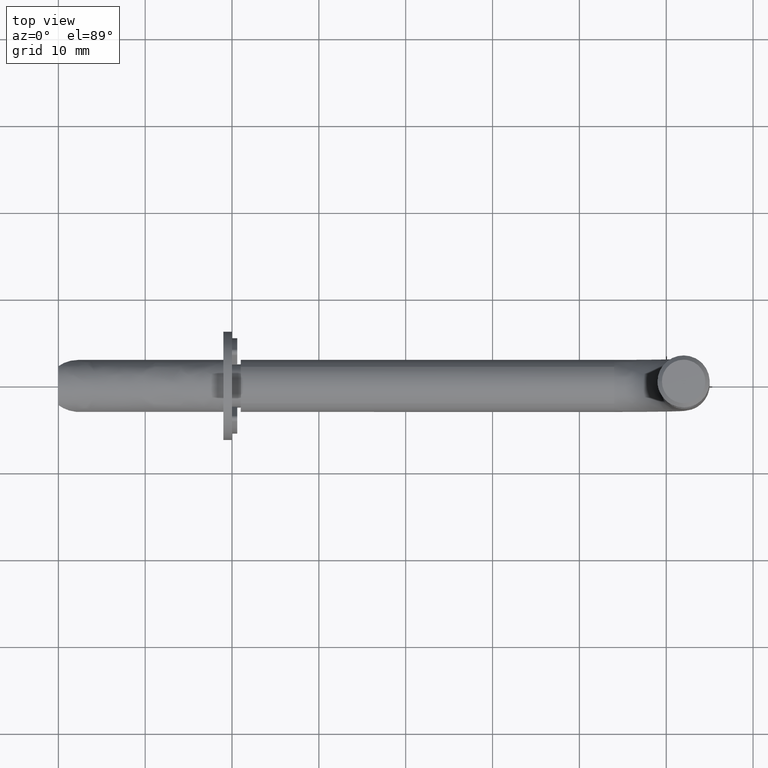
[diagram: clean part render]
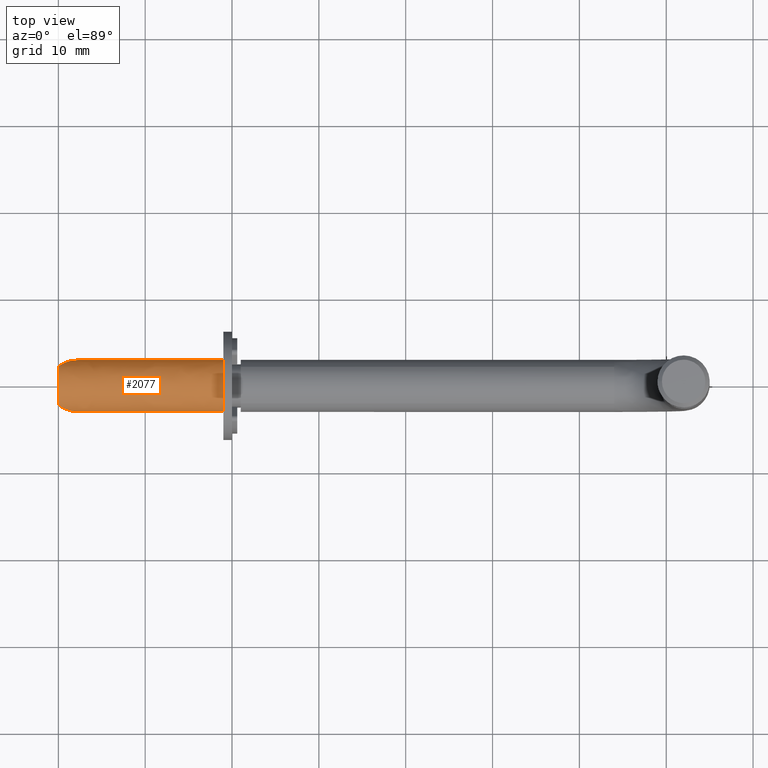
[diagram: same view with one face highlighted and labeled with its STEP entity id]
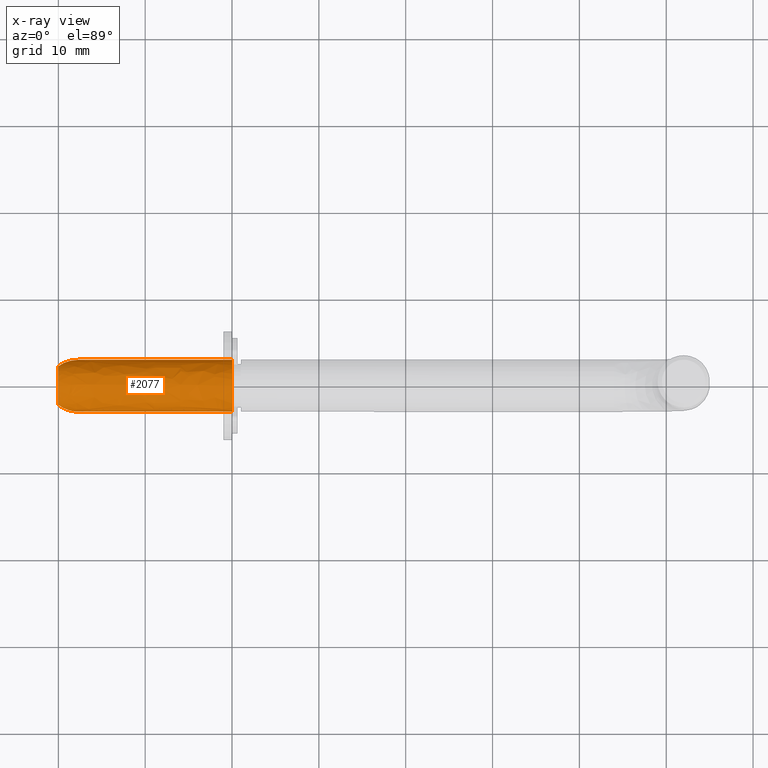
[diagram: x-ray of the same camera — body ghosted, the highlighted face saturated]
A machine part, top view. The second image highlights one B-rep face of the part: STEP entity #2077.
The next image is the same camera in x-ray: the body ghosted, the highlighted face saturated — about 0% of this face is hidden behind the body in this view.
In plain terms, the highlighted face is a freeform B-spline surface patch.
Its self-contained STEP definition (entity closure, byte-faithful):
#1966=CARTESIAN_POINT('',(-0.500000000000002,2.999416154968694,16.059183860239344));
#1967=CARTESIAN_POINT('',(-0.500000000000001,2.946713418602658,18.730139053565228));
#1968=CARTESIAN_POINT('',(-0.500000000000001,0.287537257560670,18.986188595101542));
#1969=CARTESIAN_POINT('',(-0.500000000000001,-2.698651337540866,19.273725852662192));
#1970=CARTESIAN_POINT('',(-0.500000000000002,-2.986188595101533,16.287537257560668));
#1971=CARTESIAN_POINT('',(20.512499999999999,2.999416154968694,16.059183860239344));
#1972=CARTESIAN_POINT('',(20.512500000000010,2.946713418602658,18.730139053565217));
#1973=CARTESIAN_POINT('',(20.512499999999999,0.287537257560670,18.986188595101531));
#1974=CARTESIAN_POINT('',(20.512500000000003,-2.698651337540866,19.273725852662192));
#1975=CARTESIAN_POINT('',(20.512499999999999,-2.986188595101533,16.287537257560661));
#1983=(BOUNDED_SURFACE()B_SPLINE_SURFACE(2,1,((#1966,#1971),(#1967,#1972),(#1968,#1973),(#1969,#1974),(#1970,#1975)),.UNSPECIFIED.,.F.,.F.,.U.)B_SPLINE_SURFACE_WITH_KNOTS((3,2,3),(2,2),(0.0,4.572917728598967,9.543480477076107),(0.0,21.012500000000010),.UNSPECIFIED.)GEOMETRIC_REPRESENTATION_ITEM()RATIONAL_B_SPLINE_SURFACE(((0.956886118190660,0.956886118190660),(0.730538238691624,0.730538238691624),(1.0,1.0),(0.707106781186548,0.707106781186548),(1.0,1.0)))REPRESENTATION_ITEM('')SURFACE());
#1984=CARTESIAN_POINT('',(2.328977768675013,2.999416133087530,16.059184969147729));
#1985=VERTEX_POINT('',#1984);
#1986=CARTESIAN_POINT('',(8.881784E-016,2.236077666961100,17.999989166800152));
#1987=VERTEX_POINT('',#1986);
#1988=CARTESIAN_POINT('',(2.328977768675013,2.999416133087531,16.059184969147726));
#1989=CARTESIAN_POINT('',(0.994705509597023,2.977476320143571,17.171072191540325));
#1990=CARTESIAN_POINT('',(2.168404E-015,2.236077666961064,17.999989166800159));
#1998=(BOUNDED_CURVE()B_SPLINE_CURVE(2,(#1988,#1989,#1990),.UNSPECIFIED.,.F.,.U.)B_SPLINE_CURVE_WITH_KNOTS((3,3),(0.845080155428221,1.0),.UNSPECIFIED.)CURVE()GEOMETRIC_REPRESENTATION_ITEM()RATIONAL_B_SPLINE_CURVE((0.860748726839908,0.869917091539532,1.0))REPRESENTATION_ITEM(''));
#1999=EDGE_CURVE('',#1985,#1987,#1998,.T.);
#2000=ORIENTED_EDGE('',*,*,#1999,.T.);
#2001=CARTESIAN_POINT('',(8.881784E-016,-2.236077666961100,17.999989166800152));
#2002=VERTEX_POINT('',#2001);
#2003=CARTESIAN_POINT('',(0.0,2.236077666961083,17.999989166800130));
#2004=CARTESIAN_POINT('',(0.0,1.341649507048102,19.000000000000004));
#2005=CARTESIAN_POINT('',(0.0,2.939055E-015,19.0));
#2006=CARTESIAN_POINT('',(0.0,-1.341649507048098,19.000000000000004));
#2007=CARTESIAN_POINT('',(0.0,-2.236077666961078,17.999989166800130));
#2015=(BOUNDED_CURVE()B_SPLINE_CURVE(2,(#2003,#2004,#2005,#2006,#2007),.UNSPECIFIED.,.F.,.U.)B_SPLINE_CURVE_WITH_KNOTS((3,2,3),(0.0,0.500000000000000,1.0),.UNSPECIFIED.)CURVE()GEOMETRIC_REPRESENTATION_ITEM()RATIONAL_B_SPLINE_CURVE((1.0,0.912869940243418,1.0,0.912869940243418,1.0))REPRESENTATION_ITEM(''));
#2016=EDGE_CURVE('',#1987,#2002,#2015,.T.);
#2017=ORIENTED_EDGE('',*,*,#2016,.T.);
#2018=CARTESIAN_POINT('',(2.054955239910358,-2.986188168138725,16.287541691669951));
#2019=VERTEX_POINT('',#2018);
#2020=CARTESIAN_POINT('',(8.881784E-016,-2.236077666961100,17.999989166800152));
#2021=CARTESIAN_POINT('',(0.879893877790265,-2.891900809700359,17.266750995024374));
#2022=CARTESIAN_POINT('',(2.054955239910357,-2.986188168138725,16.287541691669958));
#2030=(BOUNDED_CURVE()B_SPLINE_CURVE(2,(#2020,#2021,#2022),.UNSPECIFIED.,.F.,.U.)B_SPLINE_CURVE_WITH_KNOTS((3,3),(0.0,0.139127302762866),.UNSPECIFIED.)CURVE()GEOMETRIC_REPRESENTATION_ITEM()RATIONAL_B_SPLINE_CURVE((1.0,0.883177754020607,0.863874491956092))REPRESENTATION_ITEM(''));
#2031=EDGE_CURVE('',#2002,#2019,#2030,.T.);
#2032=ORIENTED_EDGE('',*,*,#2031,.T.);
#2033=CARTESIAN_POINT('',(20.0,-2.986188595090436,16.287537257675929));
#2034=VERTEX_POINT('',#2033);
#2035=CARTESIAN_POINT('',(2.054955239910358,-2.986188168138725,16.287541691669951));
#2036=CARTESIAN_POINT('',(20.0,-2.986188595090436,16.287537257675929));
#2037=QUASI_UNIFORM_CURVE('',1,(#2035,#2036),.UNSPECIFIED.,.F.,.U.);
#2038=EDGE_CURVE('',#2019,#2034,#2037,.T.);
#2039=ORIENTED_EDGE('',*,*,#2038,.T.);
#2040=CARTESIAN_POINT('',(20.0,0.0,19.0));
#2041=VERTEX_POINT('',#2040);
#2042=CARTESIAN_POINT('',(20.000000000000004,-2.986188595090436,16.287537257675925));
#2043=CARTESIAN_POINT('',(20.000000000000007,-2.725008139149434,19.000000000000007));
#2044=CARTESIAN_POINT('',(20.0,0.0,19.0));
#2052=(BOUNDED_CURVE()B_SPLINE_CURVE(2,(#2042,#2043,#2044),.UNSPECIFIED.,.F.,.U.)B_SPLINE_CURVE_WITH_KNOTS((3,3),(0.766651095247709,1.0),.UNSPECIFIED.)CURVE()GEOMETRIC_REPRESENTATION_ITEM()RATIONAL_B_SPLINE_CURVE((0.963582689666049,0.726614752722031,1.0))REPRESENTATION_ITEM(''));
#2053=EDGE_CURVE('',#2034,#2041,#2052,.T.);
#2054=ORIENTED_EDGE('',*,*,#2053,.T.);
#2055=CARTESIAN_POINT('',(20.0,2.999416154967890,16.059183860280029));
#2056=VERTEX_POINT('',#2055);
#2057=CARTESIAN_POINT('',(20.0,0.0,19.0));
#2058=CARTESIAN_POINT('',(20.000000000000004,2.941388578049670,18.999999999999993));
#2059=CARTESIAN_POINT('',(20.000000000000004,2.999416154967890,16.059183860280026));
#2067=(BOUNDED_CURVE()B_SPLINE_CURVE(2,(#2057,#2058,#2059),.UNSPECIFIED.,.F.,.U.)B_SPLINE_CURVE_WITH_KNOTS((3,3),(0.0,0.246526411941234),.UNSPECIFIED.)CURVE()GEOMETRIC_REPRESENTATION_ITEM()RATIONAL_B_SPLINE_CURVE((1.0,0.711176342736003,0.991973964744309))REPRESENTATION_ITEM(''));
#2068=EDGE_CURVE('',#2041,#2056,#2067,.T.);
#2069=ORIENTED_EDGE('',*,*,#2068,.T.);
#2070=CARTESIAN_POINT('',(2.328977768675013,2.999416133087530,16.059184969147729));
#2071=CARTESIAN_POINT('',(20.0,2.999416154967890,16.059183860280029));
#2072=QUASI_UNIFORM_CURVE('',1,(#2070,#2071),.UNSPECIFIED.,.F.,.U.);
#2073=EDGE_CURVE('',#1985,#2056,#2072,.T.);
#2074=ORIENTED_EDGE('',*,*,#2073,.F.);
#2075=EDGE_LOOP('',(#2000,#2017,#2032,#2039,#2054,#2069,#2074));
#2076=FACE_OUTER_BOUND('',#2075,.T.);
#2077=ADVANCED_FACE('',(#2076),#1983,.T.);